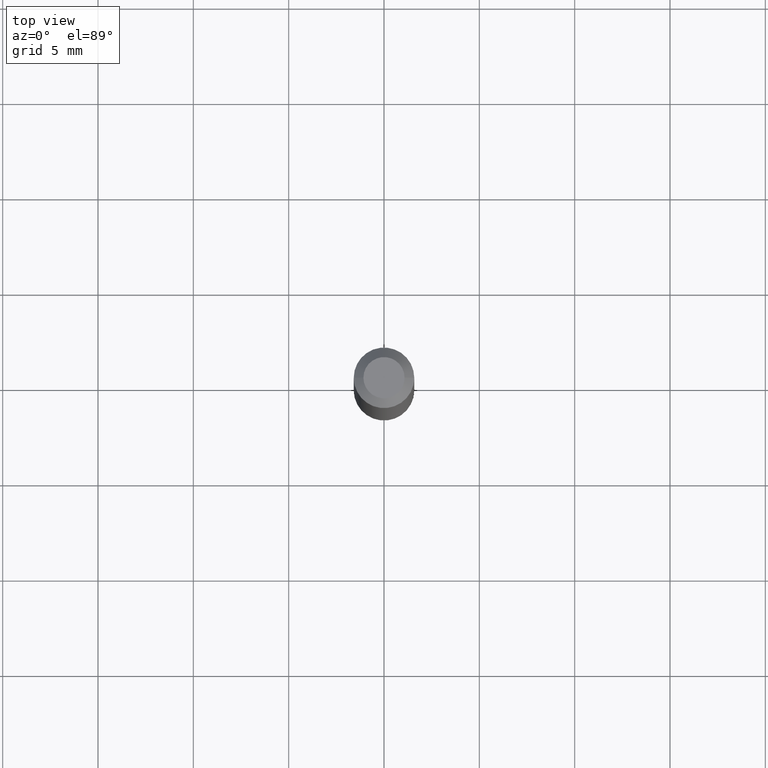
[diagram: clean part render]
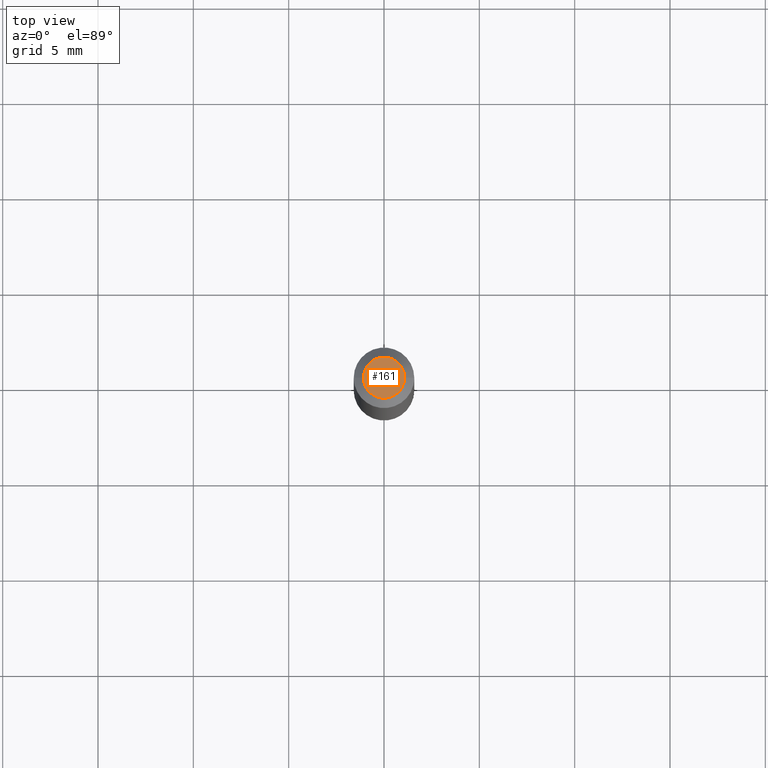
[diagram: same view with one face highlighted and labeled with its STEP entity id]
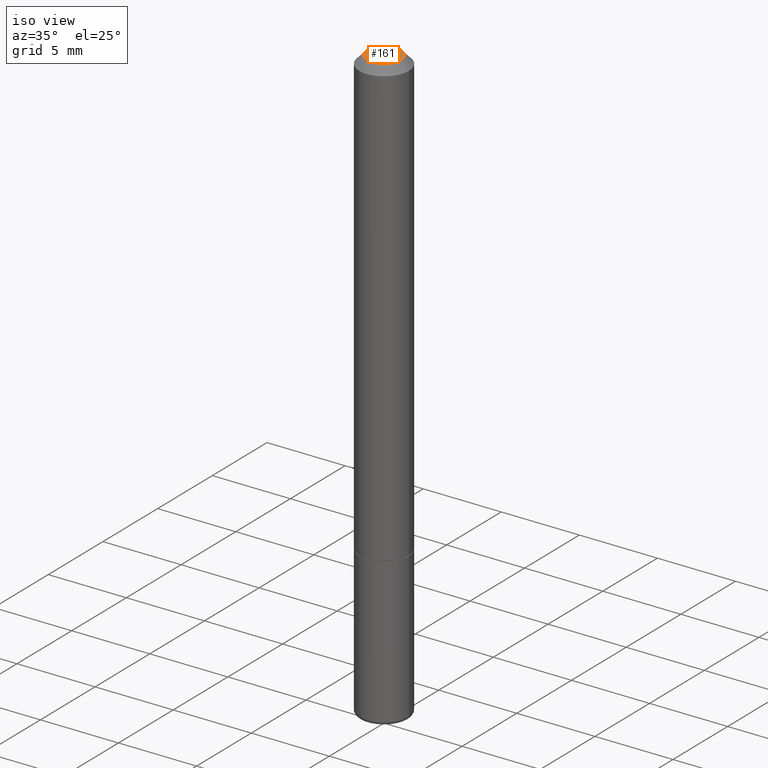
[diagram: same view with one face highlighted and labeled with its STEP entity id]
A machine part, top view. The second image highlights one B-rep face of the part: STEP entity #161.
A second angle (iso view) of the same face is appended — the face is thin or edge-on in the first view.
In plain terms, the highlighted planar face has unit normal (0, -0, -1).
Its self-contained STEP definition (entity closure, byte-faithful):
#42 = PLANE ( 'NONE',  #77 ) ;
#43 = DIRECTION ( 'NONE',  ( 2.438088387897960049E-29, -3.491481338843145188E-15, -1.000000000000000000 ) ) ;
#50 = DIRECTION ( 'NONE',  ( -2.445468806185136597E-29, 3.491481338843145583E-15, 1.000000000000000000 ) ) ;
#77 = AXIS2_PLACEMENT_3D ( 'NONE', #160, #43, #318 ) ;
#102 = DIRECTION ( 'NONE',  ( 1.000000000000000000, -6.982962677686265922E-15, 4.870577812114112753E-29 ) ) ;
#117 = ORIENTED_EDGE ( 'NONE', *, *, #368, .T. ) ;
#119 = AXIS2_PLACEMENT_3D ( 'NONE', #465, #50, #271 ) ;
#129 = CARTESIAN_POINT ( 'NONE',  ( 1.252621697202263706E-45, -1.788411804456536750E-31, -5.122214988120493535E-17 ) ) ;
#154 = ORIENTED_EDGE ( 'NONE', *, *, #278, .T. ) ;
#160 = CARTESIAN_POINT ( 'NONE',  ( 2.967759138016645800E-16, 0.04249999999999975325, -1.739990318414352692E-16 ) ) ;
#161 = ADVANCED_FACE ( 'NONE', ( #355 ), #42, .F. ) ;
#176 = AXIS2_PLACEMENT_3D ( 'NONE', #129, #359, #102 ) ;
#216 = CIRCLE ( 'NONE', #176, 0.04249999999999975325 ) ;
#271 = DIRECTION ( 'NONE',  ( 1.000000000000000000, -6.982962677686265922E-15, 4.870577812114112753E-29 ) ) ;
#272 = EDGE_LOOP ( 'NONE', ( #154, #117 ) ) ;
#278 = EDGE_CURVE ( 'NONE', #434, #426, #403, .T. ) ;
#318 = DIRECTION ( 'NONE',  ( -1.000000000000000000, 6.982962677686265922E-15, -4.876176775795935793E-29 ) ) ;
#355 = FACE_OUTER_BOUND ( 'NONE', #272, .T. ) ;
#358 = CARTESIAN_POINT ( 'NONE',  ( 0.04249999999999975325, -3.950909582714353640E-16, -5.122214988120251946E-17 ) ) ;
#359 = DIRECTION ( 'NONE',  ( -2.445468806185136597E-29, 3.491481338843145583E-15, 1.000000000000000000 ) ) ;
#368 = EDGE_CURVE ( 'NONE', #426, #434, #216, .T. ) ;
#403 = CIRCLE ( 'NONE', #119, 0.04249999999999975325 ) ;
#426 = VERTEX_POINT ( 'NONE', #358 ) ;
#434 = VERTEX_POINT ( 'NONE', #479 ) ;
#465 = CARTESIAN_POINT ( 'NONE',  ( 1.252621697202263706E-45, -1.788411804456536750E-31, -5.122214988120493535E-17 ) ) ;
#479 = CARTESIAN_POINT ( 'NONE',  ( -0.04249999999999975325, 3.316907271900955881E-16, -5.122214988120713553E-17 ) ) ;